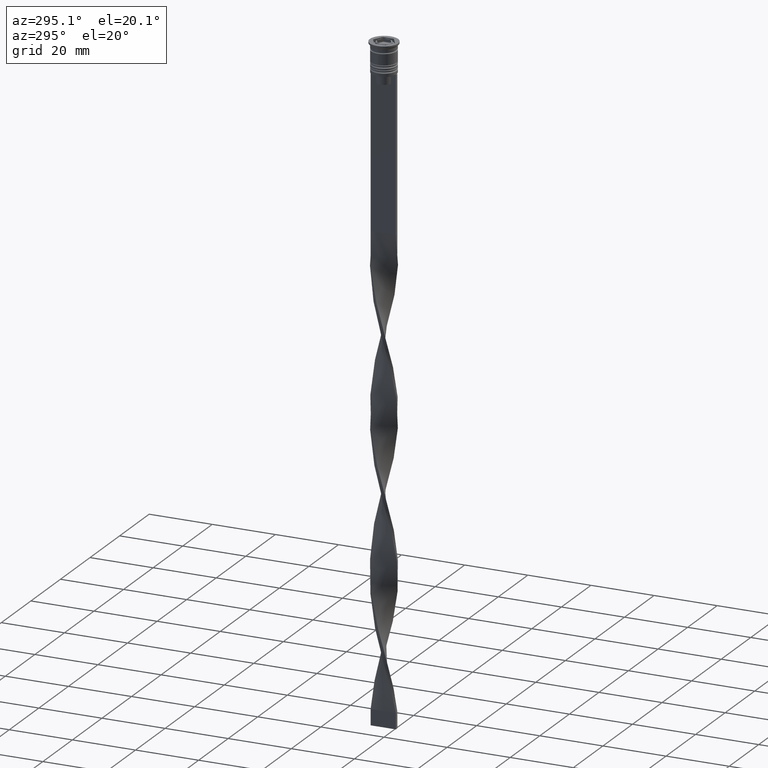
[diagram: clean part render]
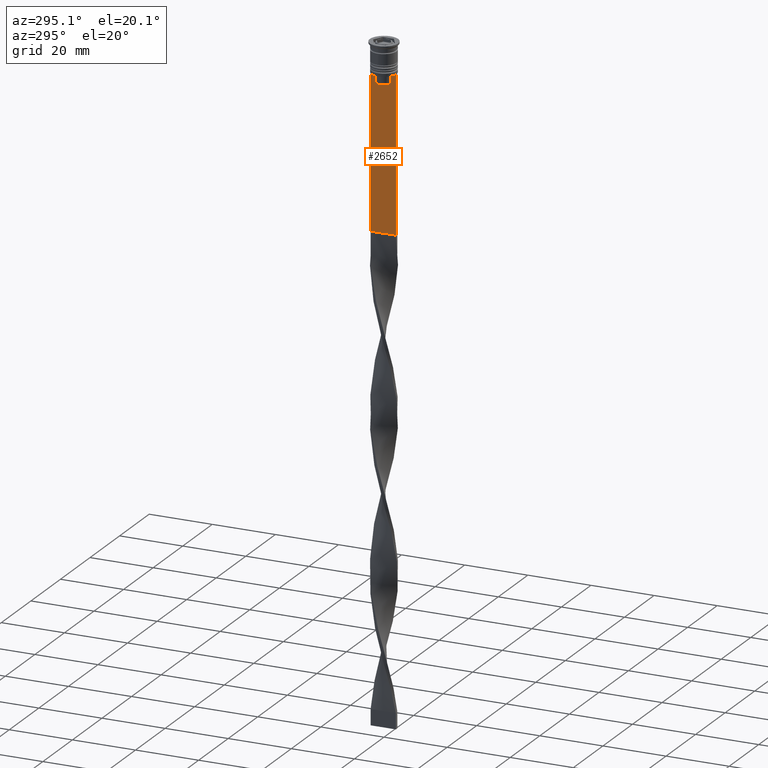
[diagram: same view with one face highlighted and labeled with its STEP entity id]
A machine part, auxiliary view. The second image highlights one B-rep face of the part: STEP entity #2652.
In plain terms, the highlighted planar face has unit normal (-1, 0, 0).
Its self-contained STEP definition (entity closure, byte-faithful):
#114 = VERTEX_POINT ( 'NONE', #166 ) ;
#125 = EDGE_CURVE ( 'NONE', #917, #2609, #1110, .T. ) ;
#166 = CARTESIAN_POINT ( 'NONE',  ( -0.5000000000000000000, -2.347338918861097135, -10.00000000000000000 ) ) ;
#204 = VECTOR ( 'NONE', #456, 1000.000000000000000 ) ;
#223 = DIRECTION ( 'NONE',  ( 0.000000000000000000, -1.000000000000000000, 0.000000000000000000 ) ) ;
#233 = ORIENTED_EDGE ( 'NONE', *, *, #2595, .F. ) ;
#264 = VECTOR ( 'NONE', #3606, 1000.000000000000000 ) ;
#307 = LINE ( 'NONE', #1847, #2744 ) ;
#370 = EDGE_CURVE ( 'NONE', #3707, #3236, #3895, .T. ) ;
#456 = DIRECTION ( 'NONE',  ( 0.000000000000000000, 0.000000000000000000, -1.000000000000000000 ) ) ;
#580 = ORIENTED_EDGE ( 'NONE', *, *, #370, .F. ) ;
#591 = CARTESIAN_POINT ( 'NONE',  ( -0.5000000000000000000, -2.856571371417138572, -9.500000000000000000 ) ) ;
#614 = EDGE_CURVE ( 'NONE', #3059, #3707, #2327, .T. ) ;
#647 = LINE ( 'NONE', #1861, #1600 ) ;
#712 = EDGE_CURVE ( 'NONE', #2385, #1626, #3449, .T. ) ;
#802 = EDGE_LOOP ( 'NONE', ( #3010, #2859, #1955, #1538, #1299, #580, #3426, #1251, #2188, #233, #1647, #2782 ) ) ;
#843 = VECTOR ( 'NONE', #1826, 1000.000000000000000 ) ;
#880 = CARTESIAN_POINT ( 'NONE',  ( -0.5000000000000000000, 2.856571371417138572, -9.500000000000000000 ) ) ;
#917 = VERTEX_POINT ( 'NONE', #3876 ) ;
#929 = EDGE_CURVE ( 'NONE', #917, #1074, #2719, .T. ) ;
#973 = VERTEX_POINT ( 'NONE', #3672 ) ;
#989 = CARTESIAN_POINT ( 'NONE',  ( -0.5000000000000000000, 2.856571371417138572, -9.500000000000000000 ) ) ;
#998 = FACE_OUTER_BOUND ( 'NONE', #802, .T. ) ;
#1074 = VERTEX_POINT ( 'NONE', #2885 ) ;
#1110 = LINE ( 'NONE', #2323, #2107 ) ;
#1121 = CARTESIAN_POINT ( 'NONE',  ( -0.5000000000000000000, -2.517408374291112416, -9.833662228483172285 ) ) ;
#1174 = CARTESIAN_POINT ( 'NONE',  ( -0.5000000000000000000, -4.000000000000000000, -1.437742251701450202 ) ) ;
#1186 = CARTESIAN_POINT ( 'NONE',  ( -0.5000000000000000000, -2.687095498514037839, -9.666937905752043037 ) ) ;
#1250 = DIRECTION ( 'NONE',  ( 0.000000000000000000, 0.000000000000000000, 1.000000000000000000 ) ) ;
#1251 = ORIENTED_EDGE ( 'NONE', *, *, #1585, .F. ) ;
#1269 = DIRECTION ( 'NONE',  ( -0.000000000000000000, -0.000000000000000000, 1.000000000000000000 ) ) ;
#1287 = VECTOR ( 'NONE', #2148, 1000.000000000000000 ) ;
#1296 = EDGE_CURVE ( 'NONE', #3236, #1074, #647, .T. ) ;
#1299 = ORIENTED_EDGE ( 'NONE', *, *, #1296, .F. ) ;
#1310 = CARTESIAN_POINT ( 'NONE',  ( -0.5000000000000000000, -4.000000000000000000, -9.500000000000000000 ) ) ;
#1314 = CARTESIAN_POINT ( 'NONE',  ( -0.5000000000000000000, 2.517407211010871393, -9.833663366238582171 ) ) ;
#1538 = ORIENTED_EDGE ( 'NONE', *, *, #929, .T. ) ;
#1565 = CARTESIAN_POINT ( 'NONE',  ( -0.5000000000000000000, 3.867815921162741422, -9.500000000000000000 ) ) ;
#1577 = CARTESIAN_POINT ( 'NONE',  ( -0.5000000000000000000, 2.347338918861097135, -10.00000000000000000 ) ) ;
#1585 = EDGE_CURVE ( 'NONE', #1988, #3059, #1804, .T. ) ;
#1600 = VECTOR ( 'NONE', #3645, 1000.000000000000000 ) ;
#1626 = VERTEX_POINT ( 'NONE', #1577 ) ;
#1635 = CARTESIAN_POINT ( 'NONE',  ( -0.5000000000000000000, -2.347338918861097135, -12.50000000000000000 ) ) ;
#1647 = ORIENTED_EDGE ( 'NONE', *, *, #2796, .F. ) ;
#1786 = CARTESIAN_POINT ( 'NONE',  ( -0.5000000000000000000, -2.347338918861097135, -10.00000000000000000 ) ) ;
#1804 = LINE ( 'NONE', #2155, #843 ) ;
#1826 = DIRECTION ( 'NONE',  ( 0.000000000000000000, -1.000000000000000000, 0.000000000000000000 ) ) ;
#1847 = CARTESIAN_POINT ( 'NONE',  ( -0.5000000000000000000, -2.347338918861097135, 0.000000000000000000 ) ) ;
#1857 = CARTESIAN_POINT ( 'NONE',  ( -0.5000000000000000000, -3.867815921162741422, -9.500000000000000000 ) ) ;
#1861 = CARTESIAN_POINT ( 'NONE',  ( -0.5000000000000000000, -4.000000000000000000, -58.50000000000000000 ) ) ;
#1955 = ORIENTED_EDGE ( 'NONE', *, *, #125, .F. ) ;
#1966 = LINE ( 'NONE', #2827, #204 ) ;
#1988 = VERTEX_POINT ( 'NONE', #3221 ) ;
#2024 = B_SPLINE_CURVE_WITH_KNOTS ( 'NONE', 3,
 ( #1786, #1121, #1186, #591 ),
 .UNSPECIFIED., .F., .F.,
 ( 4, 4 ),
 ( 0.01178336557230038641, 0.01249758354768160454 ),
 .UNSPECIFIED. ) ;
#2107 = VECTOR ( 'NONE', #3813, 1000.000000000000000 ) ;
#2148 = DIRECTION ( 'NONE',  ( 0.000000000000000000, 0.000000000000000000, -1.000000000000000000 ) ) ;
#2155 = CARTESIAN_POINT ( 'NONE',  ( -0.5000000000000000000, -4.000000000000000000, -9.500000000000000000 ) ) ;
#2188 = ORIENTED_EDGE ( 'NONE', *, *, #2468, .F. ) ;
#2290 = VECTOR ( 'NONE', #223, 1000.000000000000000 ) ;
#2323 = CARTESIAN_POINT ( 'NONE',  ( -0.5000000000000000000, -4.000000000000000000, -9.500000000000000000 ) ) ;
#2327 = LINE ( 'NONE', #3536, #2290 ) ;
#2385 = VERTEX_POINT ( 'NONE', #880 ) ;
#2387 = DIRECTION ( 'NONE',  ( 0.000000000000000000, 0.000000000000000000, -1.000000000000000000 ) ) ;
#2468 = EDGE_CURVE ( 'NONE', #114, #1988, #2024, .T. ) ;
#2478 = CARTESIAN_POINT ( 'NONE',  ( -0.5000000000000000000, -4.000000000000000000, -1.437742251701450202 ) ) ;
#2512 = CARTESIAN_POINT ( 'NONE',  ( -0.5000000000000000000, -4.000000000000000000, -58.50000000000000000 ) ) ;
#2538 = CARTESIAN_POINT ( 'NONE',  ( -0.5000000000000000000, 2.687094542495897631, -9.666938847453439010 ) ) ;
#2541 = CARTESIAN_POINT ( 'NONE',  ( -0.5000000000000000000, -4.000000000000000000, -9.500000000000000000 ) ) ;
#2595 = EDGE_CURVE ( 'NONE', #3350, #114, #307, .T. ) ;
#2609 = VERTEX_POINT ( 'NONE', #1565 ) ;
#2652 = ADVANCED_FACE ( 'NONE', ( #998 ), #3054, .T. ) ;
#2719 = LINE ( 'NONE', #3655, #1287 ) ;
#2744 = VECTOR ( 'NONE', #1269, 1000.000000000000000 ) ;
#2782 = ORIENTED_EDGE ( 'NONE', *, *, #3403, .F. ) ;
#2796 = EDGE_CURVE ( 'NONE', #973, #3350, #3023, .T. ) ;
#2827 = CARTESIAN_POINT ( 'NONE',  ( -0.5000000000000000000, 2.347338918861097135, 0.000000000000000000 ) ) ;
#2859 = ORIENTED_EDGE ( 'NONE', *, *, #3273, .F. ) ;
#2885 = CARTESIAN_POINT ( 'NONE',  ( -0.5000000000000000000, 4.000000000000000000, -58.50000000000000000 ) ) ;
#3010 = ORIENTED_EDGE ( 'NONE', *, *, #712, .F. ) ;
#3023 = LINE ( 'NONE', #3885, #264 ) ;
#3054 = PLANE ( 'NONE',  #3124 ) ;
#3059 = VERTEX_POINT ( 'NONE', #1857 ) ;
#3067 = VECTOR ( 'NONE', #3437, 1000.000000000000000 ) ;
#3124 = AXIS2_PLACEMENT_3D ( 'NONE', #2478, #3704, #1250 ) ;
#3221 = CARTESIAN_POINT ( 'NONE',  ( -0.5000000000000000000, -2.856571371417138572, -9.500000000000000000 ) ) ;
#3236 = VERTEX_POINT ( 'NONE', #2512 ) ;
#3273 = EDGE_CURVE ( 'NONE', #2609, #2385, #3455, .T. ) ;
#3350 = VERTEX_POINT ( 'NONE', #1635 ) ;
#3376 = CARTESIAN_POINT ( 'NONE',  ( -0.5000000000000000000, 2.347338918861097135, -10.00000000000000000 ) ) ;
#3403 = EDGE_CURVE ( 'NONE', #1626, #973, #1966, .T. ) ;
#3426 = ORIENTED_EDGE ( 'NONE', *, *, #614, .F. ) ;
#3437 = DIRECTION ( 'NONE',  ( 0.000000000000000000, -1.000000000000000000, 0.000000000000000000 ) ) ;
#3449 = B_SPLINE_CURVE_WITH_KNOTS ( 'NONE', 3,
 ( #989, #2538, #1314, #3376 ),
 .UNSPECIFIED., .F., .F.,
 ( 4, 4 ),
 ( 0.004956812174141195064, 0.005670477137898153989 ),
 .UNSPECIFIED. ) ;
#3455 = LINE ( 'NONE', #2541, #3067 ) ;
#3536 = CARTESIAN_POINT ( 'NONE',  ( -0.5000000000000000000, -4.000000000000000000, -9.500000000000000000 ) ) ;
#3606 = DIRECTION ( 'NONE',  ( 0.000000000000000000, -1.000000000000000000, 0.000000000000000000 ) ) ;
#3645 = DIRECTION ( 'NONE',  ( 0.000000000000000000, 1.000000000000000000, 0.000000000000000000 ) ) ;
#3655 = CARTESIAN_POINT ( 'NONE',  ( -0.5000000000000000000, 4.000000000000000000, -1.437742251701450202 ) ) ;
#3672 = CARTESIAN_POINT ( 'NONE',  ( -0.5000000000000000000, 2.347338918861097135, -12.50000000000000000 ) ) ;
#3704 = DIRECTION ( 'NONE',  ( -1.000000000000000000, 0.000000000000000000, 0.000000000000000000 ) ) ;
#3707 = VERTEX_POINT ( 'NONE', #1310 ) ;
#3813 = DIRECTION ( 'NONE',  ( 0.000000000000000000, -1.000000000000000000, 0.000000000000000000 ) ) ;
#3876 = CARTESIAN_POINT ( 'NONE',  ( -0.5000000000000000000, 4.000000000000000000, -9.500000000000000000 ) ) ;
#3884 = VECTOR ( 'NONE', #2387, 1000.000000000000000 ) ;
#3885 = CARTESIAN_POINT ( 'NONE',  ( -0.5000000000000000000, 2.399999999999996803, -12.50000000000000000 ) ) ;
#3895 = LINE ( 'NONE', #1174, #3884 ) ;